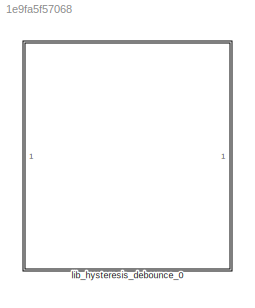
MODEL slx_1e9fa5f57068
KIND library
CONFIG AbsTol = auto
CONFIG EnableMultiTasking = off
CONFIG FixedStep = auto
CONFIG MaxStep = auto
CONFIG MinStep = auto
CONFIG RelTol = 1e-3
CONFIG SampleTimeConstraint = Unconstrained
CONFIG SolverName = VariableStepAuto
CONFIG StartTime = 0.0
CONFIG StopTime = 10.0
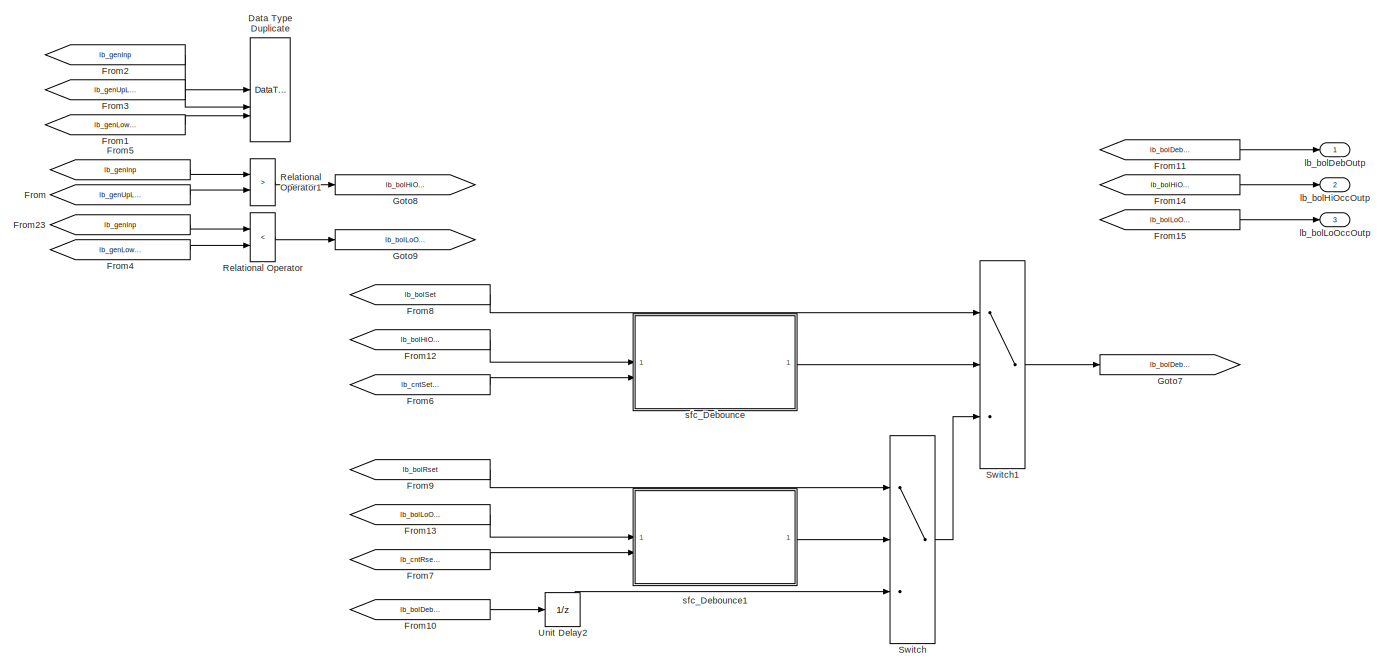
[diagram: lib_hysteresis_debounce_0 - part 1/2, most of the canvas]
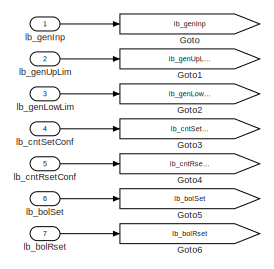
[diagram: lib_hysteresis_debounce_0 - part 2/2, top left region]
BLOCK [SubSystem] lib_hysteresis_debounce_0
  RTWFcnName = HysteresisDebounce
  RTWFcnNameOpts = User specified
  RTWFileName = VHIT_control_library
  RTWSystemCode = Reusable function
BLOCK [DataTypeDuplicate] lib_hysteresis_debounce_0/Data Type Duplicate
  NumInputPorts = 3
BLOCK [From] lib_hysteresis_debounce_0/From
  GotoTag = lb_genUpLim
BLOCK [From] lib_hysteresis_debounce_0/From1
  GotoTag = lb_genLowLim
BLOCK [From] lib_hysteresis_debounce_0/From10
  GotoTag = lb_bolDebOutp
BLOCK [From] lib_hysteresis_debounce_0/From11
  GotoTag = lb_bolDebOutp
BLOCK [From] lib_hysteresis_debounce_0/From12
  GotoTag = lb_bolHiOccOutp
BLOCK [From] lib_hysteresis_debounce_0/From13
  GotoTag = lb_bolLoOccOutp
BLOCK [From] lib_hysteresis_debounce_0/From14
  GotoTag = lb_bolHiOccOutp
BLOCK [From] lib_hysteresis_debounce_0/From15
  GotoTag = lb_bolLoOccOutp
BLOCK [From] lib_hysteresis_debounce_0/From2
  GotoTag = lb_genInp
BLOCK [From] lib_hysteresis_debounce_0/From23
  GotoTag = lb_genInp
BLOCK [From] lib_hysteresis_debounce_0/From3
  GotoTag = lb_genUpLim
BLOCK [From] lib_hysteresis_debounce_0/From4
  GotoTag = lb_genLowLim
BLOCK [From] lib_hysteresis_debounce_0/From5
  GotoTag = lb_genInp
BLOCK [From] lib_hysteresis_debounce_0/From6
  GotoTag = lb_cntSetConf
BLOCK [From] lib_hysteresis_debounce_0/From7
  GotoTag = lb_cntRsetConf
BLOCK [From] lib_hysteresis_debounce_0/From8
  GotoTag = lb_bolSet
BLOCK [From] lib_hysteresis_debounce_0/From9
  GotoTag = lb_bolRset
BLOCK [Goto] lib_hysteresis_debounce_0/Goto
  GotoTag = lb_genInp
BLOCK [Goto] lib_hysteresis_debounce_0/Goto1
  GotoTag = lb_genUpLim
BLOCK [Goto] lib_hysteresis_debounce_0/Goto2
  GotoTag = lb_genLowLim
BLOCK [Goto] lib_hysteresis_debounce_0/Goto3
  GotoTag = lb_cntSetConf
BLOCK [Goto] lib_hysteresis_debounce_0/Goto4
  GotoTag = lb_cntRsetConf
BLOCK [Goto] lib_hysteresis_debounce_0/Goto5
  GotoTag = lb_bolSet
BLOCK [Goto] lib_hysteresis_debounce_0/Goto6
  GotoTag = lb_bolRset
BLOCK [Goto] lib_hysteresis_debounce_0/Goto7
  GotoTag = lb_bolDebOutp
BLOCK [Goto] lib_hysteresis_debounce_0/Goto8
  GotoTag = lb_bolHiOccOutp
BLOCK [Goto] lib_hysteresis_debounce_0/Goto9
  GotoTag = lb_bolLoOccOutp
BLOCK [RelationalOperator] lib_hysteresis_debounce_0/Relational Operator
  InputSameDT = off
  Operator = <
  OutDataTypeStr = boolean
BLOCK [RelationalOperator] lib_hysteresis_debounce_0/Relational Operator1
  InputSameDT = off
  Operator = >
  OutDataTypeStr = boolean
BLOCK [Switch] lib_hysteresis_debounce_0/Switch
  Criteria = u2 ~= 0
  InputSameDT = off
  OutDataTypeStr = Inherit: Same as first input
  SaturateOnIntegerOverflow = off
BLOCK [Switch] lib_hysteresis_debounce_0/Switch1
  Criteria = u2 ~= 0
  InputSameDT = off
  OutDataTypeStr = Inherit: Same as first input
  SaturateOnIntegerOverflow = off
BLOCK [UnitDelay] lib_hysteresis_debounce_0/Unit Delay2
  AttributesFormatString = iy = %<X0>
  HasFrameUpgradeWarning = on
  InitialCondition = lb_parInitOutp
  NameLocation = top
  SampleTime = -1
BLOCK [Outport] lib_hysteresis_debounce_0/lb_bolDebOutp
BLOCK [Outport] lib_hysteresis_debounce_0/lb_bolHiOccOutp
  Port = 2
BLOCK [Outport] lib_hysteresis_debounce_0/lb_bolLoOccOutp
  Port = 3
BLOCK [Inport] lib_hysteresis_debounce_0/lb_bolRset
  Port = 7
BLOCK [Inport] lib_hysteresis_debounce_0/lb_bolSet
  Port = 6
BLOCK [Inport] lib_hysteresis_debounce_0/lb_cntRsetConf
  Port = 5
BLOCK [Inport] lib_hysteresis_debounce_0/lb_cntSetConf
  Port = 4
BLOCK [Inport] lib_hysteresis_debounce_0/lb_genInp
BLOCK [Inport] lib_hysteresis_debounce_0/lb_genLowLim
  Port = 3
BLOCK [Inport] lib_hysteresis_debounce_0/lb_genUpLim
  Port = 2
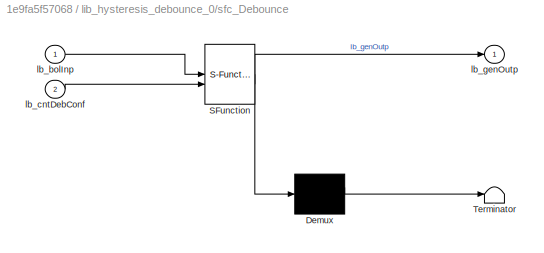
BLOCK [SubSystem] lib_hysteresis_debounce_0/sfc_Debounce
  ErrorFcn = Stateflow.Translate.translate
  PermitHierarchicalResolution = ExplicitOnly
  RTWSystemCode = Inline
  SFBlockType = Chart
  TreatAsAtomicUnit = on
BLOCK [Demux] lib_hysteresis_debounce_0/sfc_Debounce/ Demux 
  Outputs = 1
BLOCK [S-Function] lib_hysteresis_debounce_0/sfc_Debounce/ SFunction 
  EnableBusSupport = off
  FunctionName = sf_sfun
  PortCounts = [2 2]
  SFcnIsStateOwnerBlock = off
  SFunctionDeploymentMode = off
  Tag = Stateflow S-Function 7
BLOCK [Terminator] lib_hysteresis_debounce_0/sfc_Debounce/ Terminator 
BLOCK [Inport] lib_hysteresis_debounce_0/sfc_Debounce/lb_bolInp
BLOCK [Inport] lib_hysteresis_debounce_0/sfc_Debounce/lb_cntDebConf
  Port = 2
BLOCK [Outport] lib_hysteresis_debounce_0/sfc_Debounce/lb_genOutp
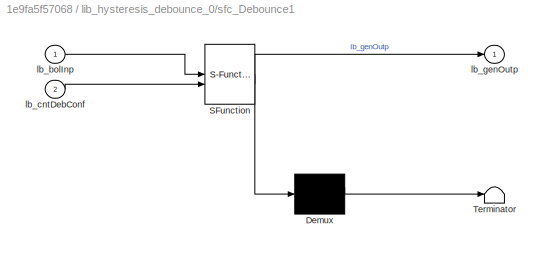
BLOCK [SubSystem] lib_hysteresis_debounce_0/sfc_Debounce1
  ErrorFcn = Stateflow.Translate.translate
  PermitHierarchicalResolution = ExplicitOnly
  RTWSystemCode = Inline
  SFBlockType = Chart
  TreatAsAtomicUnit = on
BLOCK [Demux] lib_hysteresis_debounce_0/sfc_Debounce1/ Demux 
  Outputs = 1
BLOCK [S-Function] lib_hysteresis_debounce_0/sfc_Debounce1/ SFunction 
  EnableBusSupport = off
  FunctionName = sf_sfun
  PortCounts = [2 2]
  SFcnIsStateOwnerBlock = off
  SFunctionDeploymentMode = off
  Tag = Stateflow S-Function 1
BLOCK [Terminator] lib_hysteresis_debounce_0/sfc_Debounce1/ Terminator 
BLOCK [Inport] lib_hysteresis_debounce_0/sfc_Debounce1/lb_bolInp
BLOCK [Inport] lib_hysteresis_debounce_0/sfc_Debounce1/lb_cntDebConf
  Port = 2
BLOCK [Outport] lib_hysteresis_debounce_0/sfc_Debounce1/lb_genOutp
LINE lib_hysteresis_debounce_0/From10:1 -> lib_hysteresis_debounce_0/Unit Delay2:1
LINE lib_hysteresis_debounce_0/From11:1 -> lib_hysteresis_debounce_0/lb_bolDebOutp:1
LINE lib_hysteresis_debounce_0/From12:1 -> lib_hysteresis_debounce_0/sfc_Debounce:1
LINE lib_hysteresis_debounce_0/From13:1 -> lib_hysteresis_debounce_0/sfc_Debounce1:1
LINE lib_hysteresis_debounce_0/From14:1 -> lib_hysteresis_debounce_0/lb_bolHiOccOutp:1
LINE lib_hysteresis_debounce_0/From15:1 -> lib_hysteresis_debounce_0/lb_bolLoOccOutp:1
LINE lib_hysteresis_debounce_0/From1:1 -> lib_hysteresis_debounce_0/Data Type Duplicate:3
LINE lib_hysteresis_debounce_0/From23:1 -> lib_hysteresis_debounce_0/Relational Operator:1
LINE lib_hysteresis_debounce_0/From2:1 -> lib_hysteresis_debounce_0/Data Type Duplicate:1
LINE lib_hysteresis_debounce_0/From3:1 -> lib_hysteresis_debounce_0/Data Type Duplicate:2
LINE lib_hysteresis_debounce_0/From4:1 -> lib_hysteresis_debounce_0/Relational Operator:2
LINE lib_hysteresis_debounce_0/From5:1 -> lib_hysteresis_debounce_0/Relational Operator1:1
LINE lib_hysteresis_debounce_0/From6:1 -> lib_hysteresis_debounce_0/sfc_Debounce:2
LINE lib_hysteresis_debounce_0/From7:1 -> lib_hysteresis_debounce_0/sfc_Debounce1:2
LINE lib_hysteresis_debounce_0/From8:1 -> lib_hysteresis_debounce_0/Switch1:1
LINE lib_hysteresis_debounce_0/From9:1 -> lib_hysteresis_debounce_0/Switch:1
LINE lib_hysteresis_debounce_0/From:1 -> lib_hysteresis_debounce_0/Relational Operator1:2
LINE lib_hysteresis_debounce_0/Relational Operator1:1 -> lib_hysteresis_debounce_0/Goto8:1
LINE lib_hysteresis_debounce_0/Relational Operator:1 -> lib_hysteresis_debounce_0/Goto9:1
LINE lib_hysteresis_debounce_0/Switch1:1 -> lib_hysteresis_debounce_0/Goto7:1
LINE lib_hysteresis_debounce_0/Switch:1 -> lib_hysteresis_debounce_0/Switch1:3
LINE lib_hysteresis_debounce_0/Unit Delay2:1 -> lib_hysteresis_debounce_0/Switch:3
LINE lib_hysteresis_debounce_0/lb_bolRset:1 -> lib_hysteresis_debounce_0/Goto6:1
LINE lib_hysteresis_debounce_0/lb_bolSet:1 -> lib_hysteresis_debounce_0/Goto5:1
LINE lib_hysteresis_debounce_0/lb_cntRsetConf:1 -> lib_hysteresis_debounce_0/Goto4:1
LINE lib_hysteresis_debounce_0/lb_cntSetConf:1 -> lib_hysteresis_debounce_0/Goto3:1
LINE lib_hysteresis_debounce_0/lb_genInp:1 -> lib_hysteresis_debounce_0/Goto:1
LINE lib_hysteresis_debounce_0/lb_genLowLim:1 -> lib_hysteresis_debounce_0/Goto2:1
LINE lib_hysteresis_debounce_0/lb_genUpLim:1 -> lib_hysteresis_debounce_0/Goto1:1
LINE lib_hysteresis_debounce_0/sfc_Debounce1:1 -> lib_hysteresis_debounce_0/Switch:2
LINE lib_hysteresis_debounce_0/sfc_Debounce:1 -> lib_hysteresis_debounce_0/Switch1:2
CHART lib_hysteresis_debounce_0/sfc_Debounce1 states=3 transitions=12
  STATE_LABEL 'Wait\n\nen:  lb_cntDebCond = uint16(0);\n       lb_genOutp = false;'
  STATE_LABEL 'Confirming\n/*Set Bit0*/\nen:lb_cntDebCond++;lb_genOutp = false;\ndu:lb_cntDebCond++;'
  STATE_LABEL 'Confirm\n/*Set Bit0 Bit1*/\nen: lb_cntDebCond = uint16(0);lb_genOutp = true;'
CHART lib_hysteresis_debounce_0/sfc_Debounce states=3 transitions=12
  STATE_LABEL 'Wait\n\nen:  lb_cntDebCond = uint16(0);\n       lb_genOutp = false;'
  STATE_LABEL 'Confirming\n/*Set Bit0*/\nen:lb_cntDebCond++;lb_genOutp = false;\ndu:lb_cntDebCond++;'
  STATE_LABEL 'Confirm\n/*Set Bit0 Bit1*/\nen: lb_cntDebCond = uint16(0);lb_genOutp = true;'
CHART  states=0 transitions=0
CHART  states=0 transitions=0
